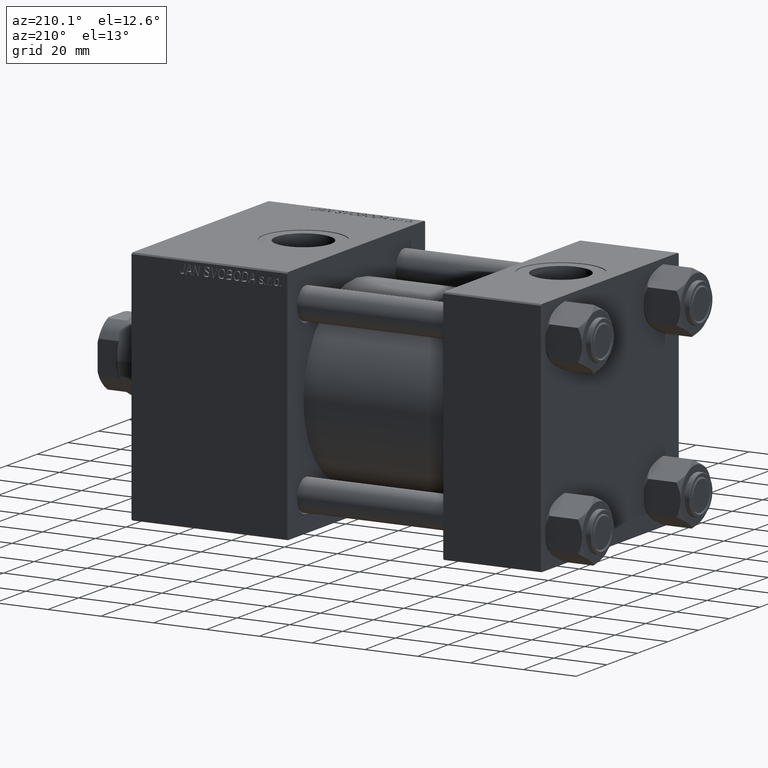
[diagram: clean part render]
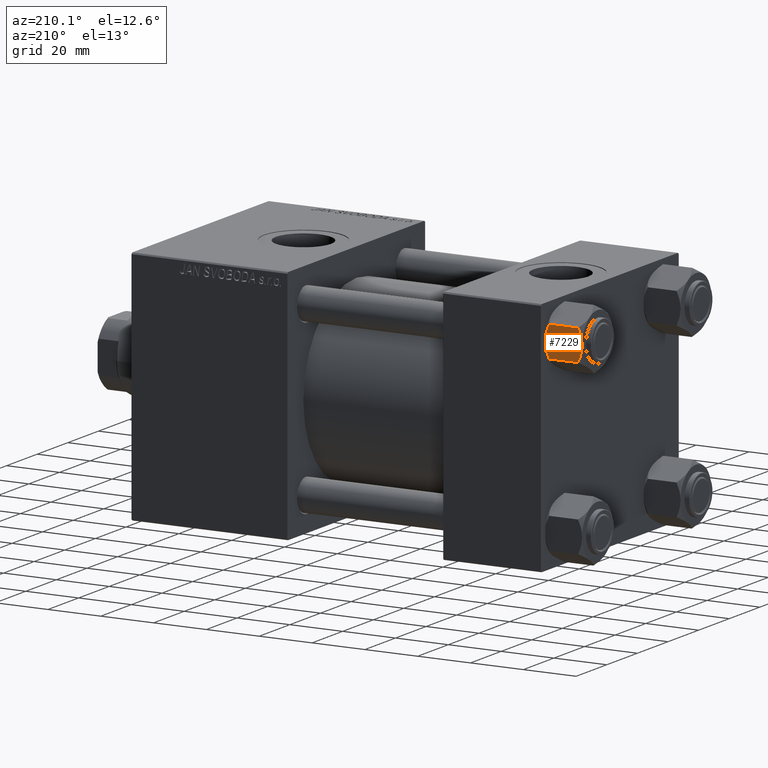
[diagram: same view with one face highlighted and labeled with its STEP entity id]
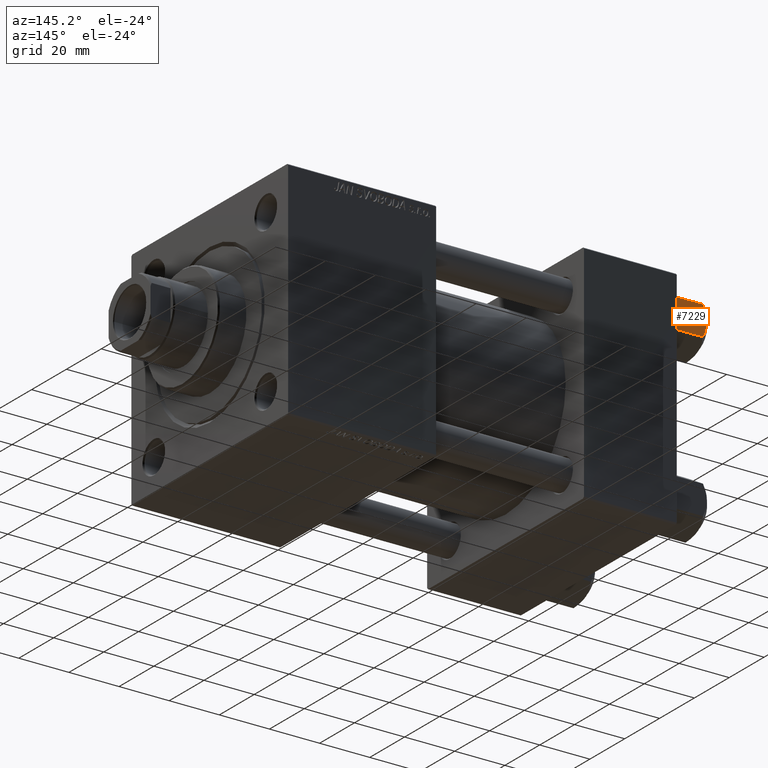
[diagram: same view with one face highlighted and labeled with its STEP entity id]
A machine part, auxiliary view. The second image highlights one B-rep face of the part: STEP entity #7229.
A second angle (auxiliary view) of the same face is appended — the face is thin or edge-on in the first view.
In plain terms, the highlighted planar face has unit normal (0, -1, -0).
Its self-contained STEP definition (entity closure, byte-faithful):
#376 = CARTESIAN_POINT ( 'NONE',  ( -5.809999999999997833, 10.06321519197518022, -14.00000000000000000 ) ) ;
#891 = DIRECTION ( 'NONE',  ( -0.000000000000000000, -0.000000000000000000, 1.000000000000000000 ) ) ;
#1642 = CARTESIAN_POINT ( 'NONE',  ( -2.508586450168038162, 10.06321519197518199, -0.2975752632032285794 ) ) ;
#2532 = CARTESIAN_POINT ( 'NONE',  ( 2.508586450168038162, 10.06321519197517844, -13.70242473679676642 ) ) ;
#2698 = VERTEX_POINT ( 'NONE', #18410 ) ;
#3395 = CARTESIAN_POINT ( 'NONE',  ( -1.020132157807625006, 10.06321519197517844, -13.99999999999999822 ) ) ;
#4461 = CARTESIAN_POINT ( 'NONE',  ( -4.908816193182376608, 10.06321519197518199, -1.106192904616006167 ) ) ;
#4967 = CARTESIAN_POINT ( 'NONE',  ( -5.809999999999997833, 10.06321519197518022, -1.556784808024814115 ) ) ;
#5411 = CARTESIAN_POINT ( 'NONE',  ( -5.809999999999997833, 10.06321519197518022, -12.44321519197518455 ) ) ;
#5542 = ORIENTED_EDGE ( 'NONE', *, *, #14478, .F. ) ;
#5829 = CARTESIAN_POINT ( 'NONE',  ( 5.810000000000000497, 10.06321519197518022, -14.00000000000000000 ) ) ;
#6327 = CARTESIAN_POINT ( 'NONE',  ( 3.474497094393252272, 10.06321519197518022, -0.5726960901042741359 ) ) ;
#7229 = ADVANCED_FACE ( 'NONE', ( #42429 ), #26721, .F. ) ;
#7235 = B_SPLINE_CURVE_WITH_KNOTS ( 'NONE', 3,
 ( #34354, #33864, #22695, #18380, #38190, #25999, #3395, #42475 ),
 .UNSPECIFIED., .F., .F.,
 ( 4, 2, 2, 4 ),
 ( 0.01467889604968878464, 0.01619420351931634069, 0.01770951098894389675, 0.02074012592819901232 ),
 .UNSPECIFIED. ) ;
#7409 = DIRECTION ( 'NONE',  ( 0.000000000000000000, -0.000000000000000000, -1.000000000000000000 ) ) ;
#8471 = VERTEX_POINT ( 'NONE', #15155 ) ;
#9012 = CARTESIAN_POINT ( 'NONE',  ( -0.5112014849988875120, 10.06321519197518199, -0.009803979428912690947 ) ) ;
#9395 = VERTEX_POINT ( 'NONE', #41132 ) ;
#12408 = AXIS2_PLACEMENT_3D ( 'NONE', #19088, #19830, #7409 ) ;
#14478 = EDGE_CURVE ( 'NONE', #20318, #2698, #7235, .T. ) ;
#14914 = ORIENTED_EDGE ( 'NONE', *, *, #49107, .F. ) ;
#15155 = CARTESIAN_POINT ( 'NONE',  ( 0.000000000000000000, 10.06321519197518022, 0.000000000000000000 ) ) ;
#15200 = CARTESIAN_POINT ( 'NONE',  ( 1.020132157807626561, 10.06321519197517844, 1.504330514323637599E-15 ) ) ;
#16730 = ORIENTED_EDGE ( 'NONE', *, *, #25561, .F. ) ;
#16876 = CARTESIAN_POINT ( 'NONE',  ( -0.2543996698847471039, 10.06321519197517844, 1.789568859311522647E-15 ) ) ;
#17246 = CARTESIAN_POINT ( 'NONE',  ( 5.810000000000000497, 10.06321519197518022, -1.556784808024815892 ) ) ;
#17724 = EDGE_LOOP ( 'NONE', ( #5542, #28263, #17997, #14914, #16730, #41056 ) ) ;
#17997 = ORIENTED_EDGE ( 'NONE', *, *, #29630, .F. ) ;
#18277 = CARTESIAN_POINT ( 'NONE',  ( 0.5112014849988876231, 10.06321519197518022, -13.99019602057108536 ) ) ;
#18380 = CARTESIAN_POINT ( 'NONE',  ( -3.958929922320416850, 10.06321519197517844, -13.25786014976459803 ) ) ;
#18410 = CARTESIAN_POINT ( 'NONE',  ( 0.000000000000000000, 10.06321519197518022, -14.00000000000000000 ) ) ;
#19088 = CARTESIAN_POINT ( 'NONE',  ( -5.809999999999997833, 10.06321519197518022, -14.00000000000000000 ) ) ;
#19524 = B_SPLINE_CURVE_WITH_KNOTS ( 'NONE', 3,
 ( #20930, #16876, #9012, #39750, #47369, #1642, #32621, #4461, #4967 ),
 .UNSPECIFIED., .F., .F.,
 ( 4, 2, 1, 2, 4 ),
 ( 0.02074012592819901579, 0.02149589804477577970, 0.02225167016135254361, 0.02376321439450607489, 0.02678630286081313400 ),
 .UNSPECIFIED. ) ;
#19830 = DIRECTION ( 'NONE',  ( 0.000000000000000000, -1.000000000000000000, 0.000000000000000000 ) ) ;
#19864 = CARTESIAN_POINT ( 'NONE',  ( -5.809999999999997833, 10.06321519197518022, -1.556784808024814115 ) ) ;
#20318 = VERTEX_POINT ( 'NONE', #5411 ) ;
#20822 = DIRECTION ( 'NONE',  ( -0.000000000000000000, -0.000000000000000000, 1.000000000000000000 ) ) ;
#20930 = CARTESIAN_POINT ( 'NONE',  ( 0.000000000000000000, 10.06321519197518022, 0.000000000000000000 ) ) ;
#21075 = CARTESIAN_POINT ( 'NONE',  ( 5.810000000000000497, 10.06321519197518022, -12.44321519197518278 ) ) ;
#21653 = VECTOR ( 'NONE', #20822, 1000.000000000000000 ) ;
#21815 = CARTESIAN_POINT ( 'NONE',  ( 2.013954290287966575, 10.06321519197518022, -0.1570111679759973733 ) ) ;
#22695 = CARTESIAN_POINT ( 'NONE',  ( -4.900668367960792082, 10.06321519197518199, -12.87844331629022676 ) ) ;
#25387 = CARTESIAN_POINT ( 'NONE',  ( 0.000000000000000000, 10.06321519197518022, -14.00000000000000000 ) ) ;
#25561 = EDGE_CURVE ( 'NONE', #9395, #25575, #44667, .T. ) ;
#25575 = VERTEX_POINT ( 'NONE', #40367 ) ;
#25999 = CARTESIAN_POINT ( 'NONE',  ( -2.013954290287967019, 10.06321519197518022, -13.84298883202399821 ) ) ;
#26304 = EDGE_CURVE ( 'NONE', #2698, #9395, #36696, .T. ) ;
#26721 = PLANE ( 'NONE',  #12408 ) ;
#28263 = ORIENTED_EDGE ( 'NONE', *, *, #35134, .T. ) ;
#29210 = CARTESIAN_POINT ( 'NONE',  ( 0.2543996698847478255, 10.06321519197517844, -14.00000000000000000 ) ) ;
#29630 = EDGE_CURVE ( 'NONE', #8471, #45563, #19524, .T. ) ;
#29962 = CARTESIAN_POINT ( 'NONE',  ( 1.772424303831127146, 10.06321519197517667, -13.86611290782775896 ) ) ;
#32621 = CARTESIAN_POINT ( 'NONE',  ( -3.960942496020600778, 10.06321519197518199, -0.7115728323610410744 ) ) ;
#32749 = CARTESIAN_POINT ( 'NONE',  ( 5.359707691559672860, 10.06321519197517844, -1.331638653804651629 ) ) ;
#33258 = CARTESIAN_POINT ( 'NONE',  ( 3.960942496020600778, 10.06321519197518022, -13.28842716763895737 ) ) ;
#33763 = CARTESIAN_POINT ( 'NONE',  ( 1.018274738099083976, 10.06321519197517844, -13.95177257919928948 ) ) ;
#33864 = CARTESIAN_POINT ( 'NONE',  ( -5.359707691559671083, 10.06321519197517844, -12.66836134619534526 ) ) ;
#34354 = CARTESIAN_POINT ( 'NONE',  ( -5.809999999999997833, 10.06321519197518022, -12.44321519197518455 ) ) ;
#34598 = B_SPLINE_CURVE_WITH_KNOTS ( 'NONE', 3,
 ( #17246, #32749, #48984, #41108, #6327, #21815, #15200, #34997 ),
 .UNSPECIFIED., .F., .F.,
 ( 4, 2, 2, 4 ),
 ( 0.01467889604968878811, 0.01619420351931634416, 0.01770951098894390369, 0.02074012592819901579 ),
 .UNSPECIFIED. ) ;
#34997 = CARTESIAN_POINT ( 'NONE',  ( 0.000000000000000000, 10.06321519197518022, 0.000000000000000000 ) ) ;
#35134 = EDGE_CURVE ( 'NONE', #20318, #45563, #46097, .T. ) ;
#36696 = B_SPLINE_CURVE_WITH_KNOTS ( 'NONE', 3,
 ( #25387, #29210, #18277, #33763, #29962, #2532, #33258, #48749, #21075 ),
 .UNSPECIFIED., .F., .F.,
 ( 4, 2, 1, 2, 4 ),
 ( 0.02074012592819901232, 0.02149589804477577970, 0.02225167016135254361, 0.02376321439450607489, 0.02678630286081313400 ),
 .UNSPECIFIED. ) ;
#38190 = CARTESIAN_POINT ( 'NONE',  ( -3.474497094393252716, 10.06321519197518022, -13.42730390989572342 ) ) ;
#39750 = CARTESIAN_POINT ( 'NONE',  ( -1.018274738099083310, 10.06321519197517667, -0.04822742080070820114 ) ) ;
#40367 = CARTESIAN_POINT ( 'NONE',  ( 5.810000000000000497, 10.06321519197518022, -1.556784808024815892 ) ) ;
#41056 = ORIENTED_EDGE ( 'NONE', *, *, #26304, .F. ) ;
#41108 = CARTESIAN_POINT ( 'NONE',  ( 3.958929922320420403, 10.06321519197517844, -0.7421398502353995230 ) ) ;
#41132 = CARTESIAN_POINT ( 'NONE',  ( 5.810000000000000497, 10.06321519197518022, -12.44321519197518278 ) ) ;
#42429 = FACE_OUTER_BOUND ( 'NONE', #17724, .T. ) ;
#42475 = CARTESIAN_POINT ( 'NONE',  ( 0.000000000000000000, 10.06321519197518022, -14.00000000000000000 ) ) ;
#44251 = VECTOR ( 'NONE', #891, 1000.000000000000000 ) ;
#44667 = LINE ( 'NONE', #5829, #21653 ) ;
#45563 = VERTEX_POINT ( 'NONE', #19864 ) ;
#46097 = LINE ( 'NONE', #376, #44251 ) ;
#47369 = CARTESIAN_POINT ( 'NONE',  ( -1.772424303831120929, 10.06321519197518022, -0.1338870921722370433 ) ) ;
#48749 = CARTESIAN_POINT ( 'NONE',  ( 4.908816193182378385, 10.06321519197517667, -12.89380709538398939 ) ) ;
#48984 = CARTESIAN_POINT ( 'NONE',  ( 4.900668367960795635, 10.06321519197518199, -1.121556683709773239 ) ) ;
#49107 = EDGE_CURVE ( 'NONE', #25575, #8471, #34598, .T. ) ;